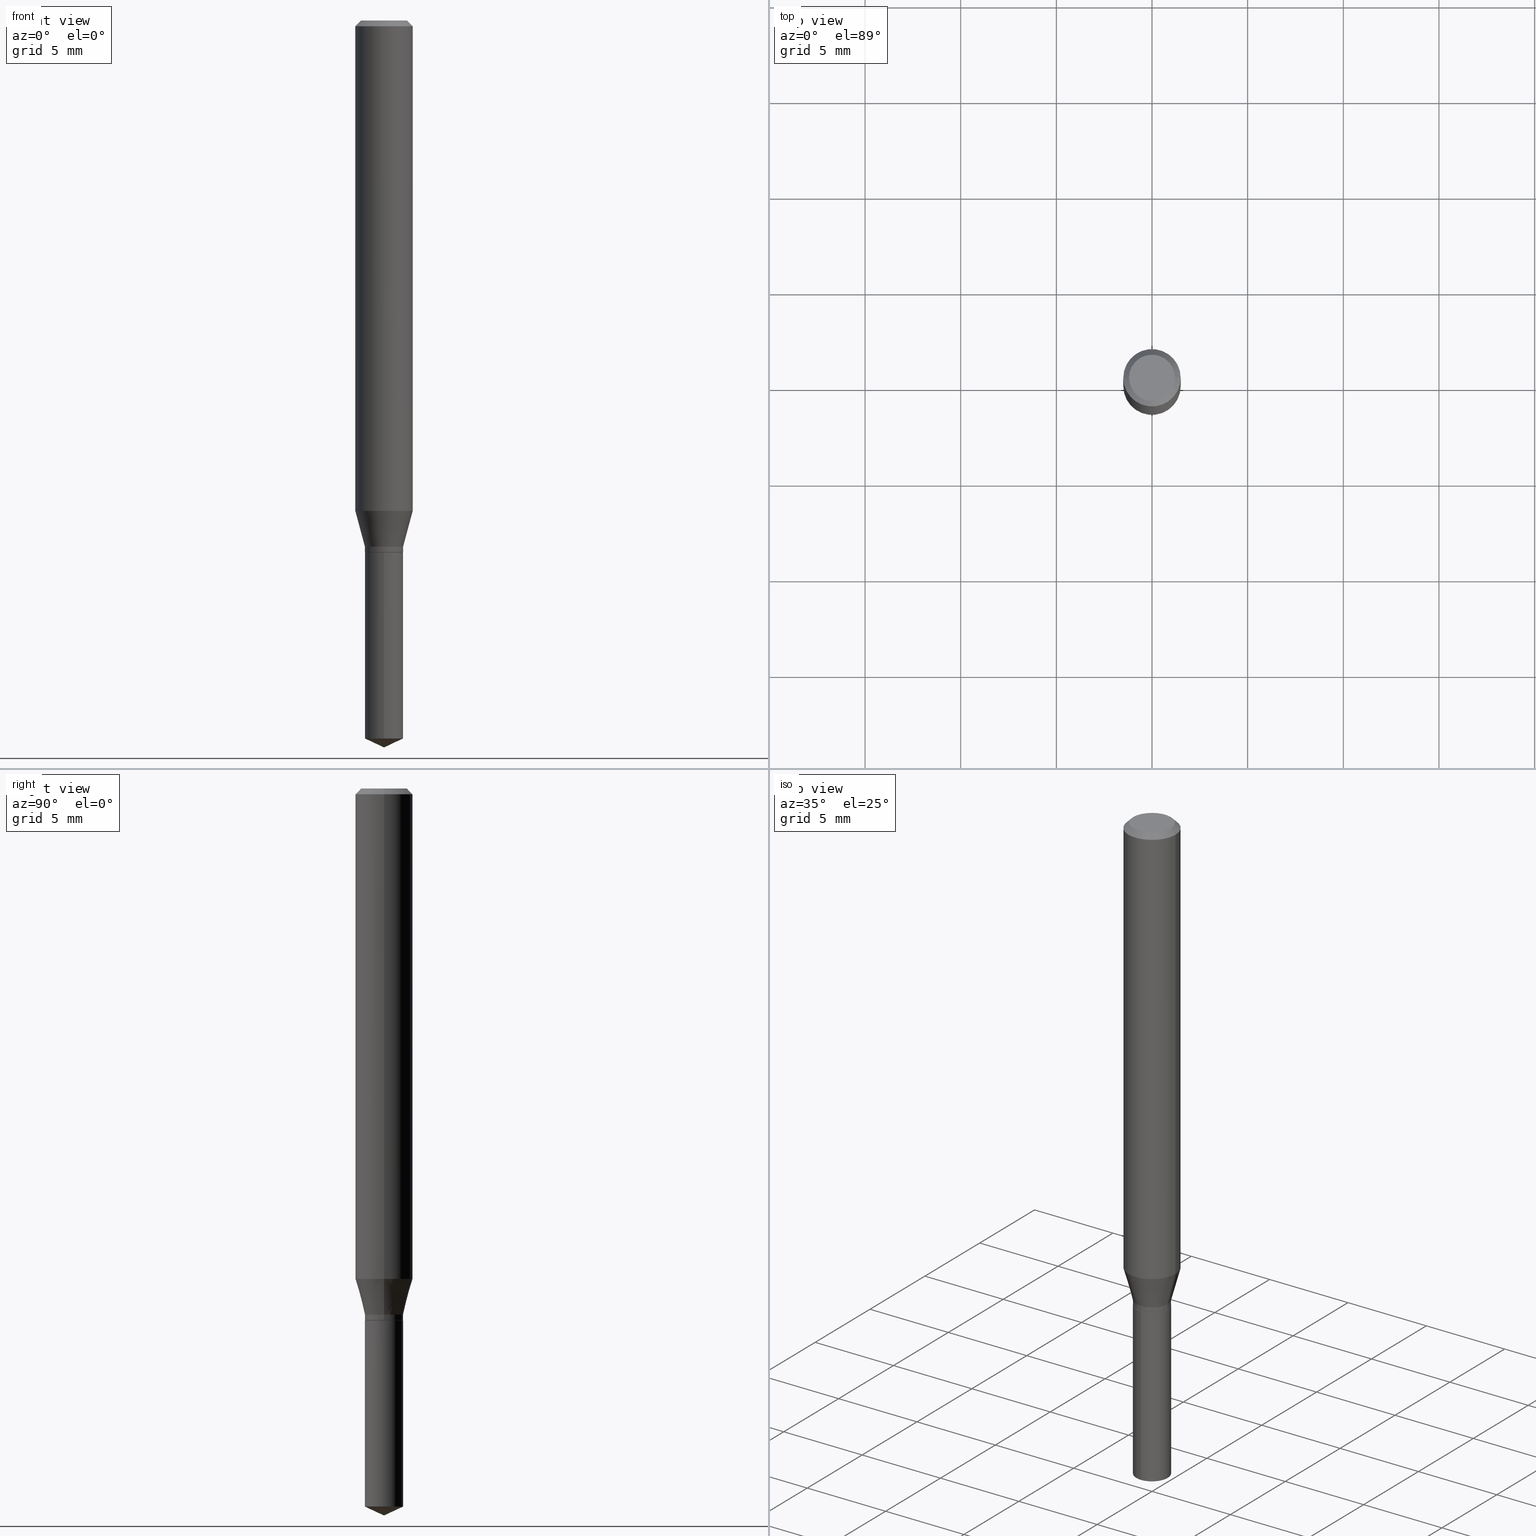
[diagram: canonical four-view strip — front | top / right | iso, engineering-drawing reading convention]
A machine part, canonical four-view strip (front | top / right | iso — engineering-drawing reading convention). The complete STEP part file that produces these views, byte-faithful:
ISO-10303-21;
HEADER;
FILE_DESCRIPTION (( 'STEP AP203' ),
    '1' );
FILE_NAME ('08369.STEP',
    '2024-04-24T14:39:38',
    ( '' ),
    ( '' ),
    'SwSTEP 2.0',
    'SolidWorks 2023',
    '' );
FILE_SCHEMA (( 'CONFIG_CONTROL_DESIGN' ));
ENDSEC;

DATA;
#1 = VERTEX_POINT ( 'NONE', #120 ) ;
#2 = ADVANCED_FACE ( 'NONE', ( #421 ), #215, .T. ) ;
#3 = PERSON_AND_ORGANIZATION ( #199, #125 ) ;
#4 = VERTEX_POINT ( 'NONE', #45 ) ;
#5 = CIRCLE ( 'NONE', #21, 0.03934999999999996834 ) ;
#6 = AXIS2_PLACEMENT_3D ( 'NONE', #400, #445, #213 ) ;
#7 = DIRECTION ( 'NONE',  ( 2.445468806185136597E-29, -3.491481338843145583E-15, -1.000000000000000000 ) ) ;
#8 = CC_DESIGN_APPROVAL ( #282, ( #61 ) ) ;
#9 = FACE_OUTER_BOUND ( 'NONE', #327, .T. ) ;
#10 = PLANE ( 'NONE',  #239 ) ;
#11 = DIMENSIONAL_EXPONENTS ( 1.000000000000000000, 0.000000000000000000, 0.000000000000000000, 0.000000000000000000, 0.000000000000000000, 0.000000000000000000, 0.000000000000000000 ) ;
#12 = CARTESIAN_POINT ( 'NONE',  ( 0.03934999999999996140, -2.747795813669542760E-16, 1.918775561275698621E-30 ) ) ;
#13 = EDGE_CURVE ( 'NONE', #4, #333, #265, .T. ) ;
#14 = CIRCLE ( 'NONE', #320, 0.03934999999999994752 ) ;
#15 = DIRECTION ( 'NONE',  ( -2.445468806185136597E-29, 3.491481338843145583E-15, 1.000000000000000000 ) ) ;
#16 = COORDINATED_UNIVERSAL_TIME_OFFSET ( 5, 0, .BEHIND. ) ;
#17 = CARTESIAN_POINT ( 'NONE',  ( -0.04724000000000000421, 3.504923541997677355E-16, -3.380025165670481712E-19 ) ) ;
#18 = DATE_AND_TIME ( #423, #426 ) ;
#19 = EDGE_CURVE ( 'NONE', #98, #245, #392, .T. ) ;
#20 = LINE ( 'NONE', #278, #154 ) ;
#21 = AXIS2_PLACEMENT_3D ( 'NONE', #427, #91, #128 ) ;
#22 = DIRECTION ( 'NONE',  ( -2.445468806185136597E-29, 3.491481338843145583E-15, 1.000000000000000000 ) ) ;
#23 = CARTESIAN_POINT ( 'NONE',  ( -0.05905000000000011628, -3.103952760819379740E-15, -1.009178599090892581 ) ) ;
#24 = ADVANCED_BREP_SHAPE_REPRESENTATION ( '08369', ( #412, #79, #31 ), #240 ) ;
#25 = ORIENTED_EDGE ( 'NONE', *, *, #289, .T. ) ;
#26 = PLANE ( 'NONE',  #196 ) ;
#27 = ORIENTED_EDGE ( 'NONE', *, *, #221, .F. ) ;
#28 = ADVANCED_FACE ( 'NONE', ( #9 ), #169, .T. ) ;
#29 = LINE ( 'NONE', #216, #479 ) ;
#30 = ORIENTED_EDGE ( 'NONE', *, *, #379, .T. ) ;
#31 = AXIS2_PLACEMENT_3D ( 'NONE', #188, #151, #419 ) ;
#32 = EDGE_CURVE ( 'NONE', #214, #98, #452, .T. ) ;
#33 = CARTESIAN_POINT ( 'NONE',  ( -2.747795813669278491E-16, -0.03935000000000382636, -1.094499999999999806 ) ) ;
#34 = ORIENTED_EDGE ( 'NONE', *, *, #251, .F. ) ;
#35 = CYLINDRICAL_SURFACE ( 'NONE', #140, 0.03934999999999996140 ) ;
#36 = ORIENTED_EDGE ( 'NONE', *, *, #187, .F. ) ;
#37 = PERSON_AND_ORGANIZATION_ROLE ( 'creator' ) ;
#38 = EDGE_LOOP ( 'NONE', ( #324, #176 ) ) ;
#39 = AXIS2_PLACEMENT_3D ( 'NONE', #241, #271, #429 ) ;
#40 = CIRCLE ( 'NONE', #70, 0.03934999999999994752 ) ;
#41 = ORIENTED_EDGE ( 'NONE', *, *, #19, .T. ) ;
#42 = VERTEX_POINT ( 'NONE', #270 ) ;
#43 = APPROVAL ( #112, 'UNSPECIFIED' ) ;
#44 = APPROVAL_DATE_TIME ( #220, #43 ) ;
#45 = CARTESIAN_POINT ( 'NONE',  ( 0.05905000000000011628, -3.935872192403094548E-15, -1.009178599090892581 ) ) ;
#46 = AXIS2_PLACEMENT_3D ( 'NONE', #237, #132, #436 ) ;
#47 = CIRCLE ( 'NONE', #186, 0.05905000000000011628 ) ;
#48 = APPROVAL_STATUS ( 'not_yet_approved' ) ;
#49 = DIRECTION ( 'NONE',  ( -6.982962677686266711E-15, -1.000000000000000000, 3.471217272762723151E-15 ) ) ;
#50 = DIRECTION ( 'NONE',  ( -6.982962677686266711E-15, -1.000000000000000000, 3.471217272762723151E-15 ) ) ;
#51 = EDGE_CURVE ( 'NONE', #333, #305, #424, .T. ) ;
#52 = PLANE ( 'NONE',  #86 ) ;
#53 = AXIS2_PLACEMENT_3D ( 'NONE', #410, #260, #461 ) ;
#54 = CARTESIAN_POINT ( 'NONE',  ( 2.676565608369631794E-29, -3.821426325363822773E-15, -1.094499999999999806 ) ) ;
#55 = ADVANCED_FACE ( 'NONE', ( #232 ), #339, .T. ) ;
#56 = CARTESIAN_POINT ( 'NONE',  ( 2.676565608369631794E-29, -3.821426325363822773E-15, -1.094499999999999806 ) ) ;
#57 = CC_DESIGN_PERSON_AND_ORGANIZATION_ASSIGNMENT ( #388, #276, ( #87 ) ) ;
#58 = CARTESIAN_POINT ( 'NONE',  ( 2.647709076456647173E-29, -3.780226845565473711E-15, -1.082699999999999996 ) ) ;
#59 = CONICAL_SURFACE ( 'NONE', #246, 0.03934999999999994752, 0.2617993877991501850 ) ;
#60 = LINE ( 'NONE', #173, #306 ) ;
#61 = SECURITY_CLASSIFICATION ( '', '', #93 ) ;
#62 = ORIENTED_EDGE ( 'NONE', *, *, #32, .T. ) ;
#63 = CARTESIAN_POINT ( 'NONE',  ( 2.795985665216355844E-16, 0.03934999999999617970, -1.094500000000000028 ) ) ;
#64 = ADVANCED_FACE ( 'NONE', ( #454 ), #456, .T. ) ;
#65 = EDGE_LOOP ( 'NONE', ( #157, #343, #365, #227 ) ) ;
#66 = CYLINDRICAL_SURFACE ( 'NONE', #6, 0.03934999999999996140 ) ;
#67 = ORIENTED_EDGE ( 'NONE', *, *, #135, .F. ) ;
#68 = CARTESIAN_POINT ( 'NONE',  ( 2.888098660104663766E-31, -4.123439461173779647E-17, -0.01181000000000007044 ) ) ;
#69 = ORIENTED_EDGE ( 'NONE', *, *, #88, .T. ) ;
#70 = AXIS2_PLACEMENT_3D ( 'NONE', #58, #259, #477 ) ;
#71 = ADVANCED_FACE ( 'NONE', ( #96 ), #238, .T. ) ;
#72 = DIRECTION ( 'NONE',  ( 1.000000000000000000, -6.982962677686265133E-15, 4.876176775795935232E-29 ) ) ;
#73 = ORIENTED_EDGE ( 'NONE', *, *, #299, .F. ) ;
#74 = COORDINATED_UNIVERSAL_TIME_OFFSET ( 5, 0, .BEHIND. ) ;
#75 = VERTEX_POINT ( 'NONE', #129 ) ;
#76 = ORIENTED_EDGE ( 'NONE', *, *, #88, .F. ) ;
#77 = VECTOR ( 'NONE', #319, 39.37007874015748143 ) ;
#78 = DIRECTION ( 'NONE',  ( 1.000000000000000000, -6.982962677686266711E-15, 4.876185090822587894E-29 ) ) ;
#79 = MANIFOLD_SOLID_BREP ( 'Body-Move/Copy2[2]', #383 ) ;
#80 = VERTEX_POINT ( 'NONE', #433 ) ;
#81 = PERSON_AND_ORGANIZATION_ROLE ( 'design_owner' ) ;
#82 = ORIENTED_EDGE ( 'NONE', *, *, #51, .T. ) ;
#83 = CC_DESIGN_PERSON_AND_ORGANIZATION_ASSIGNMENT ( #3, #81, ( #311 ) ) ;
#84 = APPROVAL_ROLE ( '' ) ;
#85 = DIRECTION ( 'NONE',  ( -2.445468806185136877E-29, 3.491481338843145188E-15, 1.000000000000000000 ) ) ;
#86 = AXIS2_PLACEMENT_3D ( 'NONE', #200, #202, #430 ) ;
#87 = PRODUCT_DEFINITION_FORMATION_WITH_SPECIFIED_SOURCE ( 'ANY', '', #311, .NOT_KNOWN. ) ;
#88 = EDGE_CURVE ( 'NONE', #42, #224, #257, .T. ) ;
#89 = DIRECTION ( 'NONE',  ( -2.445358326776455510E-29, 3.491639551644474585E-15, 1.000000000000000000 ) ) ;
#90 = CALENDAR_DATE ( 2024, 24, 4 ) ;
#91 = DIRECTION ( 'NONE',  ( -2.445468806185136597E-29, 3.491481338843145583E-15, 1.000000000000000000 ) ) ;
#92 = CARTESIAN_POINT ( 'NONE',  ( 8.265746106709734507E-48, -1.180129479067563789E-33, -3.380025165646692144E-19 ) ) ;
#93 = SECURITY_CLASSIFICATION_LEVEL ( 'unclassified' ) ;
#94 = CC_DESIGN_APPROVAL ( #43, ( #485 ) ) ;
#95 = DIRECTION ( 'NONE',  ( -2.445468806185136597E-29, 3.491481338843145583E-15, 1.000000000000000000 ) ) ;
#96 = FACE_OUTER_BOUND ( 'NONE', #398, .T. ) ;
#97 = DIRECTION ( 'NONE',  ( -2.445468806185136877E-29, 3.491481338843145188E-15, 1.000000000000000000 ) ) ;
#98 = VERTEX_POINT ( 'NONE', #168 ) ;
#99 = EDGE_CURVE ( 'NONE', #245, #98, #5, .T. ) ;
#100 = AXIS2_PLACEMENT_3D ( 'NONE', #395, #89, #389 ) ;
#101 = DIRECTION ( 'NONE',  ( -2.445358326776455510E-29, 3.491639551644474585E-15, 1.000000000000000000 ) ) ;
#102 = VERTEX_POINT ( 'NONE', #309 ) ;
#103 = FACE_OUTER_BOUND ( 'NONE', #252, .T. ) ;
#104 = ORIENTED_EDGE ( 'NONE', *, *, #107, .F. ) ;
#105 = CARTESIAN_POINT ( 'NONE',  ( 2.888098660104663766E-31, -4.123439461173779647E-17, -0.01181000000000007044 ) ) ;
#106 = VERTEX_POINT ( 'NONE', #391 ) ;
#107 = EDGE_CURVE ( 'NONE', #106, #411, #368, .T. ) ;
#108 = CARTESIAN_POINT ( 'NONE',  ( 2.647709076456647173E-29, -3.780226845565473711E-15, -1.082699999999999996 ) ) ;
#109 = AXIS2_PLACEMENT_3D ( 'NONE', #376, #185, #378 ) ;
#110 = ORIENTED_EDGE ( 'NONE', *, *, #379, .F. ) ;
#111 = CONICAL_SURFACE ( 'NONE', #471, 0.05904999999999999832, 0.7853981633974452814 ) ;
#112 = APPROVAL_STATUS ( 'not_yet_approved' ) ;
#113 = ORIENTED_EDGE ( 'NONE', *, *, #446, .F. ) ;
#114 =( LENGTH_UNIT ( ) NAMED_UNIT ( * ) SI_UNIT ( $, .METRE. ) );
#115 = UNCERTAINTY_MEASURE_WITH_UNIT (LENGTH_MEASURE( 1.000000000000000082E-05 ), #302, 'distance_accuracy_value', 'NONE');
#116 = ORIENTED_EDGE ( 'NONE', *, *, #344, .F. ) ;
#117 = CARTESIAN_POINT ( 'NONE',  ( 0.000000000000000000, 0.000000000000000000, 0.000000000000000000 ) ) ;
#118 = CLOSED_SHELL ( 'NONE', ( #342, #150, #481, #55, #192 ) ) ;
#119 = VECTOR ( 'NONE', #443, 39.37007874015748143 ) ;
#120 = CARTESIAN_POINT ( 'NONE',  ( 0.05904999999999999832, -4.535783407291118600E-16, -0.01181000000000007044 ) ) ;
#121 = APPLICATION_CONTEXT ( 'configuration controlled 3d designs of mechanical parts and assemblies' ) ;
#122 = CARTESIAN_POINT ( 'NONE',  ( 8.265746106709734507E-48, -1.180129479067563789E-33, -3.380025165646692144E-19 ) ) ;
#123 = DIRECTION ( 'NONE',  ( -2.445468806185136597E-29, 3.491481338843145583E-15, 1.000000000000000000 ) ) ;
#124 = CARTESIAN_POINT ( 'NONE',  ( -0.05904999999999999832, 3.711095515056362547E-16, -0.01181000000000007044 ) ) ;
#125 = ORGANIZATION ( 'UNSPECIFIED', 'UNSPECIFIED', '' ) ;
#126 = PERSON_AND_ORGANIZATION ( #199, #125 ) ;
#127 = CARTESIAN_POINT ( 'NONE',  ( 2.795985665216355844E-16, 0.03934999999999485437, -1.477750793651601446 ) ) ;
#128 = DIRECTION ( 'NONE',  ( 1.000000000000000000, -6.982962677686262766E-15, 0.000000000000000000 ) ) ;
#129 = CARTESIAN_POINT ( 'NONE',  ( 0.04724000000000000421, -3.852183633974369345E-16, -3.380025165621689721E-19 ) ) ;
#130 = VECTOR ( 'NONE', #159, 39.37007874015748143 ) ;
#131 = VECTOR ( 'NONE', #285, 39.37007874015748854 ) ;
#132 = DIRECTION ( 'NONE',  ( -2.445358326776455510E-29, 3.491639551644474585E-15, 1.000000000000000000 ) ) ;
#133 = DIRECTION ( 'NONE',  ( -2.445358326776455510E-29, 3.491639551644474585E-15, 1.000000000000000000 ) ) ;
#134 = ORIENTED_EDGE ( 'NONE', *, *, #310, .T. ) ;
#135 = EDGE_CURVE ( 'NONE', #80, #333, #20, .T. ) ;
#136 = LINE ( 'NONE', #359, #131 ) ;
#137 = EDGE_LOOP ( 'NONE', ( #110, #367, #76 ) ) ;
#138 = CIRCLE ( 'NONE', #418, 0.03885000000000000259 ) ;
#139 = DIRECTION ( 'NONE',  ( -2.445468806185136877E-29, 3.491481338843145188E-15, 1.000000000000000000 ) ) ;
#140 = AXIS2_PLACEMENT_3D ( 'NONE', #381, #300, #72 ) ;
#141 = ORIENTED_EDGE ( 'NONE', *, *, #460, .F. ) ;
#142 = LINE ( 'NONE', #448, #314 ) ;
#143 = DIRECTION ( 'NONE',  ( 0.7071067811864992780, -2.468850131081751401E-15, 0.7071067811865957564 ) ) ;
#144 = EDGE_LOOP ( 'NONE', ( #255, #413, #341, #183 ) ) ;
#145 = APPROVAL_ROLE ( '' ) ;
#146 = AXIS2_PLACEMENT_3D ( 'NONE', #92, #465, #165 ) ;
#147 = DIRECTION ( 'NONE',  ( 1.000000000000000000, -6.982962677686269077E-15, 0.000000000000000000 ) ) ;
#148 = APPROVAL_PERSON_ORGANIZATION ( #126, #407, #463 ) ;
#149 = CARTESIAN_POINT ( 'NONE',  ( -0.05905000000000006077, 4.195754854663395916E-16, -2.904631170795524694E-30 ) ) ;
#150 = ADVANCED_FACE ( 'NONE', ( #243 ), #203, .T. ) ;
#151 = DIRECTION ( 'NONE',  ( 0.000000000000000000, 0.000000000000000000, 1.000000000000000000 ) ) ;
#152 = DIRECTION ( 'NONE',  ( 1.000000000000000000, -6.982962677686266711E-15, 0.000000000000000000 ) ) ;
#153 = VERTEX_POINT ( 'NONE', #17 ) ;
#154 = VECTOR ( 'NONE', #396, 39.37007874015748143 ) ;
#155 = LOCAL_TIME ( 10, 39, 38.00000000000000000, #16 ) ;
#156 = DIRECTION ( 'NONE',  ( -1.000000000000000000, 6.982962677686266711E-15, 0.000000000000000000 ) ) ;
#157 = ORIENTED_EDGE ( 'NONE', *, *, #177, .F. ) ;
#158 = ADVANCED_FACE ( 'NONE', ( #163 ), #10, .F. ) ;
#159 = DIRECTION ( 'NONE',  ( 0.7071067811865453523, -7.319954787623248157E-15, -0.7071067811865496822 ) ) ;
#160 = CC_DESIGN_PERSON_AND_ORGANIZATION_ASSIGNMENT ( #205, #467, ( #61 ) ) ;
#161 = DIRECTION ( 'NONE',  ( -2.438088387897960049E-29, 3.491481338843145188E-15, 1.000000000000000000 ) ) ;
#162 = COORDINATED_UNIVERSAL_TIME_OFFSET ( 5, 0, .BEHIND. ) ;
#163 = FACE_OUTER_BOUND ( 'NONE', #420, .T. ) ;
#164 = DATE_AND_TIME ( #357, #155 ) ;
#165 = DIRECTION ( 'NONE',  ( 1.000000000000000000, -6.982962677686266711E-15, 4.876185090822587894E-29 ) ) ;
#166 = CALENDAR_DATE ( 2024, 24, 4 ) ;
#167 = EDGE_CURVE ( 'NONE', #245, #102, #206, .T. ) ;
#168 = CARTESIAN_POINT ( 'NONE',  ( -0.03934999999999996834, -3.520355148608338095E-15, -1.093999999999999861 ) ) ;
#169 = CONICAL_SURFACE ( 'NONE', #109, 0.05904999999999999832, 0.7853981633974452814 ) ;
#170 = CIRCLE ( 'NONE', #53, 0.03885000000000000259 ) ;
#171 = DIRECTION ( 'NONE',  ( 1.000000000000000000, -6.982962677686266711E-15, 0.000000000000000000 ) ) ;
#172 = EDGE_CURVE ( 'NONE', #449, #224, #318, .T. ) ;
#173 = CARTESIAN_POINT ( 'NONE',  ( 0.03885000000000000259, -4.092714425391933894E-15, -1.094499999999999806 ) ) ;
#174 = ORIENTED_EDGE ( 'NONE', *, *, #242, .T. ) ;
#175 = DIRECTION ( 'NONE',  ( -2.445468806185136597E-29, 3.491481338843145583E-15, 1.000000000000000000 ) ) ;
#176 = ORIENTED_EDGE ( 'NONE', *, *, #221, .T. ) ;
#177 = EDGE_CURVE ( 'NONE', #75, #1, #281, .T. ) ;
#178 = CARTESIAN_POINT ( 'NONE',  ( -0.05904999999999999832, -1.362805834982388396E-15, -0.01181000000000007044 ) ) ;
#179 = APPROVAL_PERSON_ORGANIZATION ( #334, #43, #145 ) ;
#180 = ORIENTED_EDGE ( 'NONE', *, *, #172, .F. ) ;
#181 = DIRECTION ( 'NONE',  ( -6.982962677686266711E-15, -1.000000000000000000, 3.471217272762723151E-15 ) ) ;
#182 = ORIENTED_EDGE ( 'NONE', *, *, #310, .F. ) ;
#183 = ORIENTED_EDGE ( 'NONE', *, *, #19, .F. ) ;
#184 = FACE_OUTER_BOUND ( 'NONE', #65, .T. ) ;
#185 = DIRECTION ( 'NONE',  ( 2.445468806185136597E-29, -3.491481338843145583E-15, -1.000000000000000000 ) ) ;
#186 = AXIS2_PLACEMENT_3D ( 'NONE', #482, #371, #439 ) ;
#187 = EDGE_CURVE ( 'NONE', #153, #305, #464, .T. ) ;
#188 = CARTESIAN_POINT ( 'NONE',  ( 0.000000000000000000, 0.000000000000000000, 0.000000000000000000 ) ) ;
#189 = ORIENTED_EDGE ( 'NONE', *, *, #256, .F. ) ;
#190 = APPLICATION_PROTOCOL_DEFINITION ( 'international standard', 'config_control_design', 1994, #414 ) ;
#191 = ORIENTED_EDGE ( 'NONE', *, *, #289, .F. ) ;
#192 = ADVANCED_FACE ( 'NONE', ( #387 ), #52, .F. ) ;
#193 = PERSON_AND_ORGANIZATION ( #199, #125 ) ;
#194 = ORIENTED_EDGE ( 'NONE', *, *, #431, .F. ) ;
#195 = AXIS2_PLACEMENT_3D ( 'NONE', #263, #123, #152 ) ;
#196 = AXIS2_PLACEMENT_3D ( 'NONE', #405, #475, #248 ) ;
#197 = PRODUCT_RELATED_PRODUCT_CATEGORY ( 'detail', '', ( #311 ) ) ;
#198 = CARTESIAN_POINT ( 'NONE',  ( 2.676565608369631794E-29, -3.821426325363822773E-15, -1.094499999999999806 ) ) ;
#199 = PERSON ( 'UNSPECIFIED', 'UNSPECIFIED', 'UNSPECIFIED', ('UNSPECIFIED'), ('UNSPECIFIED'), ('UNSPECIFIED') ) ;
#200 = CARTESIAN_POINT ( 'NONE',  ( 2.676565608369631794E-29, -3.821426325363822773E-15, -1.094499999999999806 ) ) ;
#201 = DATE_TIME_ROLE ( 'classification_date' ) ;
#202 = DIRECTION ( 'NONE',  ( 2.445358326776454949E-29, -3.491639551644474585E-15, -1.000000000000000000 ) ) ;
#203 = CONICAL_SURFACE ( 'NONE', #100, 84.42940631927631046, 1.134464013796324888 ) ;
#204 = DIRECTION ( 'NONE',  ( -2.445468806185136597E-29, 3.491481338843145583E-15, 1.000000000000000000 ) ) ;
#205 = PERSON_AND_ORGANIZATION ( #199, #125 ) ;
#206 = LINE ( 'NONE', #12, #77 ) ;
#207 = FACE_OUTER_BOUND ( 'NONE', #144, .T. ) ;
#208 = CONICAL_SURFACE ( 'NONE', #297, 0.03934999999999994752, 0.2617993877991501850 ) ;
#209 = DIRECTION ( 'NONE',  ( 1.000000000000000000, -6.982962677686266711E-15, 0.000000000000000000 ) ) ;
#210 = ORIENTED_EDGE ( 'NONE', *, *, #416, .T. ) ;
#211 = DIRECTION ( 'NONE',  ( 1.000000000000000000, -6.982962677686269077E-15, 0.000000000000000000 ) ) ;
#212 = ORIENTED_EDGE ( 'NONE', *, *, #99, .F. ) ;
#213 = DIRECTION ( 'NONE',  ( 1.000000000000000000, -6.982962677686265133E-15, 4.876176775795935232E-29 ) ) ;
#214 = VERTEX_POINT ( 'NONE', #349 ) ;
#215 = CONICAL_SURFACE ( 'NONE', #457, 0.03885000000000000259, 0.7853981633973801113 ) ;
#216 = CARTESIAN_POINT ( 'NONE',  ( 0.03934999999999994752, -4.055006426932427839E-15, -1.082699999999999996 ) ) ;
#217 = VECTOR ( 'NONE', #97, 39.37007874015748143 ) ;
#218 = ORIENTED_EDGE ( 'NONE', *, *, #13, .F. ) ;
#219 = ORIENTED_EDGE ( 'NONE', *, *, #277, .F. ) ;
#220 = DATE_AND_TIME ( #451, #234 ) ;
#221 = EDGE_CURVE ( 'NONE', #75, #153, #360, .T. ) ;
#222 = DIRECTION ( 'NONE',  ( 1.000000000000000000, -6.982962677686262766E-15, 0.000000000000000000 ) ) ;
#223 = AXIS2_PLACEMENT_3D ( 'NONE', #198, #348, #50 ) ;
#224 = VERTEX_POINT ( 'NONE', #127 ) ;
#225 = AXIS2_PLACEMENT_3D ( 'NONE', #290, #362, #211 ) ;
#226 = CARTESIAN_POINT ( 'NONE',  ( 3.613751127869260610E-29, -5.159599954676888561E-15, -1.477750793651601224 ) ) ;
#227 = ORIENTED_EDGE ( 'NONE', *, *, #394, .T. ) ;
#228 = ADVANCED_FACE ( 'NONE', ( #275 ), #59, .T. ) ;
#229 = APPLICATION_PROTOCOL_DEFINITION ( 'international standard', 'config_control_design', 1994, #121 ) ;
#230 = ORIENTED_EDGE ( 'NONE', *, *, #51, .F. ) ;
#231 = CC_DESIGN_DATE_AND_TIME_ASSIGNMENT ( #164, #428, ( #485 ) ) ;
#232 = FACE_OUTER_BOUND ( 'NONE', #295, .T. ) ;
#233 = VECTOR ( 'NONE', #385, 39.37007874015748143 ) ;
#234 = LOCAL_TIME ( 10, 39, 38.00000000000000000, #74 ) ;
#235 = DIRECTION ( 'NONE',  ( -0.7071067811865453523, 2.468850131082234184E-15, -0.7071067811865496822 ) ) ;
#236 = DATE_AND_TIME ( #90, #480 ) ;
#237 = CARTESIAN_POINT ( 'NONE',  ( 3.613751127869260610E-29, -5.159599954676888561E-15, -1.477750793651601224 ) ) ;
#238 = CYLINDRICAL_SURFACE ( 'NONE', #39, 0.05905000000000006077 ) ;
#239 = AXIS2_PLACEMENT_3D ( 'NONE', #56, #161, #358 ) ;
#240 =( GEOMETRIC_REPRESENTATION_CONTEXT ( 3 ) GLOBAL_UNCERTAINTY_ASSIGNED_CONTEXT ( ( #115 ) ) GLOBAL_UNIT_ASSIGNED_CONTEXT ( ( #302, #375, #267 ) ) REPRESENTATION_CONTEXT ( 'NONE', 'WORKASPACE' ) );
#241 = CARTESIAN_POINT ( 'NONE',  ( 0.000000000000000000, 0.000000000000000000, 0.000000000000000000 ) ) ;
#242 = EDGE_CURVE ( 'NONE', #447, #214, #138, .T. ) ;
#243 = FACE_OUTER_BOUND ( 'NONE', #137, .T. ) ;
#244 = DIRECTION ( 'NONE',  ( 1.000000000000000000, -6.982962677686266711E-15, 0.000000000000000000 ) ) ;
#245 = VERTEX_POINT ( 'NONE', #279 ) ;
#246 = AXIS2_PLACEMENT_3D ( 'NONE', #352, #15, #468 ) ;
#247 = AXIS2_PLACEMENT_3D ( 'NONE', #105, #175, #366 ) ;
#248 = DIRECTION ( 'NONE',  ( -1.000000000000000000, 6.982962677686265922E-15, -4.876176775795935793E-29 ) ) ;
#249 = ORIENTED_EDGE ( 'NONE', *, *, #394, .F. ) ;
#250 = DIRECTION ( 'NONE',  ( -2.445468806185136597E-29, 3.491481338843145583E-15, 1.000000000000000000 ) ) ;
#251 = EDGE_CURVE ( 'NONE', #98, #80, #437, .T. ) ;
#252 = EDGE_LOOP ( 'NONE', ( #69, #417, #104, #268 ) ) ;
#253 = FACE_OUTER_BOUND ( 'NONE', #462, .T. ) ;
#254 = DESIGN_CONTEXT ( 'detailed design', #121, 'design' ) ;
#255 = ORIENTED_EDGE ( 'NONE', *, *, #32, .F. ) ;
#256 = EDGE_CURVE ( 'NONE', #224, #411, #329, .T. ) ;
#257 = CIRCLE ( 'NONE', #46, 0.03935000000000000303 ) ;
#258 = AXIS2_PLACEMENT_3D ( 'NONE', #117, #95, #355 ) ;
#259 = DIRECTION ( 'NONE',  ( -2.445468806185136597E-29, 3.491481338843145583E-15, 1.000000000000000000 ) ) ;
#260 = DIRECTION ( 'NONE',  ( -2.445468806185136597E-29, 3.491481338843145583E-15, 1.000000000000000000 ) ) ;
#261 = CARTESIAN_POINT ( 'NONE',  ( 2.675342873966538993E-29, -3.819680584694400481E-15, -1.093999999999999861 ) ) ;
#262 = DIRECTION ( 'NONE',  ( 0.2588190451025214611, 1.565188264969620982E-15, 0.9659258262890679791 ) ) ;
#263 = CARTESIAN_POINT ( 'NONE',  ( 2.467914783946393779E-29, -3.523528246285719627E-15, -1.009178599090892581 ) ) ;
#264 = LENGTH_MEASURE_WITH_UNIT ( LENGTH_MEASURE( 0.02539999999999999897 ), #114 );
#265 = CIRCLE ( 'NONE', #195, 0.05905000000000011628 ) ;
#266 = ORIENTED_EDGE ( 'NONE', *, *, #277, .T. ) ;
#267 =( NAMED_UNIT ( * ) SI_UNIT ( $, .STERADIAN. ) SOLID_ANGLE_UNIT ( ) );
#268 = ORIENTED_EDGE ( 'NONE', *, *, #422, .F. ) ;
#269 = CC_DESIGN_PERSON_AND_ORGANIZATION_ASSIGNMENT ( #432, #315, ( #87 ) ) ;
#270 = CARTESIAN_POINT ( 'NONE',  ( -2.747795813669185307E-16, -0.03935000000000517251, -1.477750793651601002 ) ) ;
#271 = DIRECTION ( 'NONE',  ( -2.445468806185136597E-29, 3.491481338843145583E-15, 1.000000000000000000 ) ) ;
#272 = VECTOR ( 'NONE', #316, 39.37007874015748143 ) ;
#273 = CC_DESIGN_APPROVAL ( #407, ( #87 ) ) ;
#274 = PERSON_AND_ORGANIZATION ( #199, #125 ) ;
#275 = FACE_OUTER_BOUND ( 'NONE', #291, .T. ) ;
#276 = PERSON_AND_ORGANIZATION_ROLE ( 'design_supplier' ) ;
#277 = EDGE_CURVE ( 'NONE', #80, #102, #40, .T. ) ;
#278 = CARTESIAN_POINT ( 'NONE',  ( -0.03934999999999994752, -3.500628279043874316E-15, -1.082699999999999996 ) ) ;
#279 = CARTESIAN_POINT ( 'NONE',  ( 0.03934999999999996834, -4.094460166061354609E-15, -1.093999999999999861 ) ) ;
#280 = AXIS2_PLACEMENT_3D ( 'NONE', #490, #301, #49 ) ;
#281 = LINE ( 'NONE', #313, #130 ) ;
#282 = APPROVAL ( #48, 'UNSPECIFIED' ) ;
#283 = CARTESIAN_POINT ( 'NONE',  ( 2.676565608369631794E-29, -3.821426325363822773E-15, -1.094499999999999806 ) ) ;
#284 = EDGE_LOOP ( 'NONE', ( #174, #62, #212, #116 ) ) ;
#285 = DIRECTION ( 'NONE',  ( -6.328713451373399355E-15, -0.9063077870366528233, 0.4226182617406928910 ) ) ;
#286 = ORIENTED_EDGE ( 'NONE', *, *, #99, .T. ) ;
#287 = AXIS2_PLACEMENT_3D ( 'NONE', #261, #346, #222 ) ;
#288 = CIRCLE ( 'NONE', #247, 0.05904999999999999832 ) ;
#289 = EDGE_CURVE ( 'NONE', #411, #106, #361, .T. ) ;
#290 = CARTESIAN_POINT ( 'NONE',  ( 2.676565608369631794E-29, -3.821426325363822773E-15, -1.094499999999999806 ) ) ;
#291 = EDGE_LOOP ( 'NONE', ( #67, #266, #440, #303 ) ) ;
#292 = FACE_OUTER_BOUND ( 'NONE', #483, .T. ) ;
#293 = ORIENTED_EDGE ( 'NONE', *, *, #135, .T. ) ;
#294 = CARTESIAN_POINT ( 'NONE',  ( 2.795985665216261180E-16, 0.03934999999999617970, -1.094500000000000028 ) ) ;
#295 = EDGE_LOOP ( 'NONE', ( #189, #459, #474, #191 ) ) ;
#296 = VECTOR ( 'NONE', #235, 39.37007874015748143 ) ;
#297 = AXIS2_PLACEMENT_3D ( 'NONE', #108, #484, #209 ) ;
#298 = EDGE_LOOP ( 'NONE', ( #486, #25 ) ) ;
#299 = EDGE_CURVE ( 'NONE', #102, #80, #14, .T. ) ;
#300 = DIRECTION ( 'NONE',  ( -2.445468806185136597E-29, 3.491481338843145583E-15, 1.000000000000000000 ) ) ;
#301 = DIRECTION ( 'NONE',  ( -2.445358326776455510E-29, 3.491639551644474585E-15, 1.000000000000000000 ) ) ;
#302 =( CONVERSION_BASED_UNIT ( 'INCH', #264 ) LENGTH_UNIT ( ) NAMED_UNIT ( #11 ) );
#303 = ORIENTED_EDGE ( 'NONE', *, *, #335, .F. ) ;
#304 = FACE_OUTER_BOUND ( 'NONE', #372, .T. ) ;
#305 = VERTEX_POINT ( 'NONE', #178 ) ;
#306 = VECTOR ( 'NONE', #143, 39.37007874015748143 ) ;
#307 = DIRECTION ( 'NONE',  ( -2.445358326776455510E-29, 3.491639551644474585E-15, 1.000000000000000000 ) ) ;
#308 = CARTESIAN_POINT ( 'NONE',  ( -0.03885000000000000259, -3.545380472521023882E-15, -1.094499999999999806 ) ) ;
#309 = CARTESIAN_POINT ( 'NONE',  ( 0.03934999999999994752, -4.055006426932427839E-15, -1.082699999999999996 ) ) ;
#310 = EDGE_CURVE ( 'NONE', #4, #1, #142, .T. ) ;
#311 = PRODUCT ( '08369', '08369', '', ( #374 ) ) ;
#312 = DATE_AND_TIME ( #166, #337 ) ;
#313 = CARTESIAN_POINT ( 'NONE',  ( 0.05904999999999999832, -4.463468013801466955E-16, -0.01181000000000007044 ) ) ;
#314 = VECTOR ( 'NONE', #139, 39.37007874015748143 ) ;
#315 = PERSON_AND_ORGANIZATION_ROLE ( 'creator' ) ;
#316 = DIRECTION ( 'NONE',  ( 6.439704144417057174E-15, 0.9063077870366559319, 0.4226182617406866737 ) ) ;
#317 = APPROVAL_STATUS ( 'not_yet_approved' ) ;
#318 = LINE ( 'NONE', #470, #272 ) ;
#319 = DIRECTION ( 'NONE',  ( -2.445468806185136877E-29, 3.491481338843145188E-15, 1.000000000000000000 ) ) ;
#320 = AXIS2_PLACEMENT_3D ( 'NONE', #402, #250, #244 ) ;
#321 = AXIS2_PLACEMENT_3D ( 'NONE', #473, #101, #364 ) ;
#322 = DIRECTION ( 'NONE',  ( -2.445358326776455790E-29, 3.491639551644474585E-15, 1.000000000000000000 ) ) ;
#323 = CARTESIAN_POINT ( 'NONE',  ( -0.03934999999999996140, 2.795985665215991489E-16, -1.935600958015303540E-30 ) ) ;
#324 = ORIENTED_EDGE ( 'NONE', *, *, #434, .T. ) ;
#325 = ADVANCED_FACE ( 'NONE', ( #253 ), #208, .T. ) ;
#326 = LINE ( 'NONE', #33, #119 ) ;
#327 = EDGE_LOOP ( 'NONE', ( #27, #476, #210, #36 ) ) ;
#328 = AXIS2_PLACEMENT_3D ( 'NONE', #122, #340, #78 ) ;
#329 = LINE ( 'NONE', #294, #377 ) ;
#330 = ORIENTED_EDGE ( 'NONE', *, *, #416, .F. ) ;
#331 = FACE_OUTER_BOUND ( 'NONE', #38, .T. ) ;
#332 = ADVANCED_FACE ( 'NONE', ( #207 ), #442, .T. ) ;
#333 = VERTEX_POINT ( 'NONE', #23 ) ;
#334 = PERSON_AND_ORGANIZATION ( #199, #125 ) ;
#335 = EDGE_CURVE ( 'NONE', #333, #4, #47, .T. ) ;
#336 = EDGE_LOOP ( 'NONE', ( #34, #41, #363, #219 ) ) ;
#337 = LOCAL_TIME ( 10, 39, 38.00000000000000000, #354 ) ;
#338 = DIRECTION ( 'NONE',  ( -2.445358326776455510E-29, 3.491639551644474585E-15, 1.000000000000000000 ) ) ;
#339 = CYLINDRICAL_SURFACE ( 'NONE', #280, 0.03935000000000000303 ) ;
#340 = DIRECTION ( 'NONE',  ( -2.445468806185136597E-29, 3.491481338843145583E-15, 1.000000000000000000 ) ) ;
#341 = ORIENTED_EDGE ( 'NONE', *, *, #344, .T. ) ;
#342 = ADVANCED_FACE ( 'NONE', ( #103 ), #397, .T. ) ;
#343 = ORIENTED_EDGE ( 'NONE', *, *, #434, .F. ) ;
#344 = EDGE_CURVE ( 'NONE', #447, #245, #60, .T. ) ;
#345 = DIRECTION ( 'NONE',  ( -6.982962677686266711E-15, -1.000000000000000000, 6.942434545525446301E-15 ) ) ;
#346 = DIRECTION ( 'NONE',  ( -2.445468806185136597E-29, 3.491481338843145583E-15, 1.000000000000000000 ) ) ;
#347 = AXIS2_PLACEMENT_3D ( 'NONE', #283, #133, #181 ) ;
#348 = DIRECTION ( 'NONE',  ( -2.445358326776455510E-29, 3.491639551644474585E-15, 1.000000000000000000 ) ) ;
#349 = CARTESIAN_POINT ( 'NONE',  ( -0.03885000000000000259, -3.542731245346912681E-15, -1.094499999999999806 ) ) ;
#350 = PRODUCT_DEFINITION_SHAPE ( 'NONE', 'NONE',  #485 ) ;
#351 = APPROVAL_DATE_TIME ( #236, #282 ) ;
#352 = CARTESIAN_POINT ( 'NONE',  ( 2.647709076456647173E-29, -3.780226845565473711E-15, -1.082699999999999996 ) ) ;
#353 = CIRCLE ( 'NONE', #408, 0.03935000000000000303 ) ;
#354 = COORDINATED_UNIVERSAL_TIME_OFFSET ( 5, 0, .BEHIND. ) ;
#355 = DIRECTION ( 'NONE',  ( 1.000000000000000000, -6.982962677686266711E-15, 4.876176775795935793E-29 ) ) ;
#356 = CC_DESIGN_PERSON_AND_ORGANIZATION_ASSIGNMENT ( #193, #37, ( #485 ) ) ;
#357 = CALENDAR_DATE ( 2024, 24, 4 ) ;
#358 = DIRECTION ( 'NONE',  ( 1.000000000000000000, -6.982962677686265922E-15, 4.876176775795935793E-29 ) ) ;
#359 = CARTESIAN_POINT ( 'NONE',  ( 3.658500592690254185E-29, -5.223841933215297403E-15, -1.496099999999999985 ) ) ;
#360 = CIRCLE ( 'NONE', #146, 0.04724000000000000421 ) ;
#361 = CIRCLE ( 'NONE', #347, 0.03935000000000000303 ) ;
#362 = DIRECTION ( 'NONE',  ( -2.445468806185136597E-29, 3.491481338843145583E-15, 1.000000000000000000 ) ) ;
#363 = ORIENTED_EDGE ( 'NONE', *, *, #167, .T. ) ;
#364 = DIRECTION ( 'NONE',  ( -6.982962677686266711E-15, -1.000000000000000000, 3.471217272762723151E-15 ) ) ;
#365 = ORIENTED_EDGE ( 'NONE', *, *, #187, .T. ) ;
#366 = DIRECTION ( 'NONE',  ( 1.000000000000000000, -6.982962677686266711E-15, 0.000000000000000000 ) ) ;
#367 = ORIENTED_EDGE ( 'NONE', *, *, #172, .T. ) ;
#368 = CIRCLE ( 'NONE', #223, 0.03935000000000000303 ) ;
#369 = AXIS2_PLACEMENT_3D ( 'NONE', #68, #22, #171 ) ;
#370 = ADVANCED_FACE ( 'NONE', ( #331 ), #26, .F. ) ;
#371 = DIRECTION ( 'NONE',  ( -2.445468806185136597E-29, 3.491481338843145583E-15, 1.000000000000000000 ) ) ;
#372 = EDGE_LOOP ( 'NONE', ( #180, #30, #113 ) ) ;
#373 = CC_DESIGN_DATE_AND_TIME_ASSIGNMENT ( #312, #201, ( #61 ) ) ;
#374 = MECHANICAL_CONTEXT ( 'NONE', #414, 'mechanical' ) ;
#375 =( NAMED_UNIT ( * ) PLANE_ANGLE_UNIT ( ) SI_UNIT ( $, .RADIAN. ) );
#376 = CARTESIAN_POINT ( 'NONE',  ( 2.888098660104663766E-31, -4.123439461173779647E-17, -0.01181000000000007044 ) ) ;
#377 = VECTOR ( 'NONE', #322, 39.37007874015748143 ) ;
#378 = DIRECTION ( 'NONE',  ( -1.000000000000000000, 6.982962677686266711E-15, 0.000000000000000000 ) ) ;
#379 = EDGE_CURVE ( 'NONE', #449, #42, #136, .T. ) ;
#380 = ORIENTED_EDGE ( 'NONE', *, *, #242, .F. ) ;
#381 = CARTESIAN_POINT ( 'NONE',  ( 0.000000000000000000, 0.000000000000000000, 0.000000000000000000 ) ) ;
#382 = CARTESIAN_POINT ( 'NONE',  ( 2.676565608369631794E-29, -3.821426325363822773E-15, -1.094499999999999806 ) ) ;
#383 = CLOSED_SHELL ( 'NONE', ( #2, #28, #64, #325, #404, #466, #228, #71, #472, #370, #158, #332 ) ) ;
#384 = CIRCLE ( 'NONE', #328, 0.04724000000000000421 ) ;
#385 = DIRECTION ( 'NONE',  ( -0.7071067811864992780, 7.493145998870180611E-15, 0.7071067811865957564 ) ) ;
#386 = COORDINATED_UNIVERSAL_TIME_OFFSET ( 5, 0, .BEHIND. ) ;
#387 = FACE_OUTER_BOUND ( 'NONE', #298, .T. ) ;
#388 = PERSON_AND_ORGANIZATION ( #199, #125 ) ;
#389 = DIRECTION ( 'NONE',  ( -6.982962677686265922E-15, -1.000000000000000000, 3.520397390770371828E-15 ) ) ;
#390 = APPROVAL_DATE_TIME ( #18, #407 ) ;
#391 = CARTESIAN_POINT ( 'NONE',  ( -2.747795813669278491E-16, -0.03935000000000382636, -1.094499999999999806 ) ) ;
#392 = CIRCLE ( 'NONE', #287, 0.03934999999999996834 ) ;
#393 = CONICAL_SURFACE ( 'NONE', #450, 84.42940631927631046, 1.134464013796324888 ) ;
#394 = EDGE_CURVE ( 'NONE', #305, #1, #435, .T. ) ;
#395 = CARTESIAN_POINT ( 'NONE',  ( -9.261532836068574158E-28, 1.322424553111868898E-13, 37.87397874015748300 ) ) ;
#396 = DIRECTION ( 'NONE',  ( -0.2588190451025214611, 5.211531920934550253E-15, 0.9659258262890679791 ) ) ;
#397 = CYLINDRICAL_SURFACE ( 'NONE', #321, 0.03935000000000000303 ) ;
#398 = EDGE_LOOP ( 'NONE', ( #230, #406, #134, #249 ) ) ;
#399 = APPROVAL_PERSON_ORGANIZATION ( #274, #282, #84 ) ;
#400 = CARTESIAN_POINT ( 'NONE',  ( 0.000000000000000000, 0.000000000000000000, 0.000000000000000000 ) ) ;
#401 = ORIENTED_EDGE ( 'NONE', *, *, #167, .F. ) ;
#402 = CARTESIAN_POINT ( 'NONE',  ( 2.647709076456647173E-29, -3.780226845565473711E-15, -1.082699999999999996 ) ) ;
#403 = ORIENTED_EDGE ( 'NONE', *, *, #251, .T. ) ;
#404 = ADVANCED_FACE ( 'NONE', ( #292 ), #66, .T. ) ;
#405 = CARTESIAN_POINT ( 'NONE',  ( 4.132873053354867254E-48, -5.900647395337818946E-34, -1.690012582823346072E-19 ) ) ;
#406 = ORIENTED_EDGE ( 'NONE', *, *, #335, .T. ) ;
#407 = APPROVAL ( #317, 'UNSPECIFIED' ) ;
#408 = AXIS2_PLACEMENT_3D ( 'NONE', #226, #338, #345 ) ;
#409 = CC_DESIGN_SECURITY_CLASSIFICATION ( #61, ( #87 ) ) ;
#410 = CARTESIAN_POINT ( 'NONE',  ( 2.676565608369631794E-29, -3.821426325363822773E-15, -1.094499999999999806 ) ) ;
#411 = VERTEX_POINT ( 'NONE', #63 ) ;
#412 = MANIFOLD_SOLID_BREP ( 'Body-Move/Copy2[1]', #118 ) ;
#413 = ORIENTED_EDGE ( 'NONE', *, *, #460, .T. ) ;
#414 = APPLICATION_CONTEXT ( 'configuration controlled 3d designs of mechanical parts and assemblies' ) ;
#415 = CARTESIAN_POINT ( 'NONE',  ( 3.658500592690254185E-29, -5.223841933215297403E-15, -1.496099999999999985 ) ) ;
#416 = EDGE_CURVE ( 'NONE', #1, #305, #288, .T. ) ;
#417 = ORIENTED_EDGE ( 'NONE', *, *, #256, .T. ) ;
#418 = AXIS2_PLACEMENT_3D ( 'NONE', #54, #204, #469 ) ;
#419 = DIRECTION ( 'NONE',  ( 1.000000000000000000, 0.000000000000000000, 0.000000000000000000 ) ) ;
#420 = EDGE_LOOP ( 'NONE', ( #380, #141 ) ) ;
#421 = FACE_OUTER_BOUND ( 'NONE', #284, .T. ) ;
#422 = EDGE_CURVE ( 'NONE', #42, #106, #326, .T. ) ;
#423 = CALENDAR_DATE ( 2024, 24, 4 ) ;
#424 = LINE ( 'NONE', #149, #441 ) ;
#425 = SHAPE_DEFINITION_REPRESENTATION ( #350, #24 ) ;
#426 = LOCAL_TIME ( 10, 39, 38.00000000000000000, #162 ) ;
#427 = CARTESIAN_POINT ( 'NONE',  ( 2.675342873966538993E-29, -3.819680584694400481E-15, -1.093999999999999861 ) ) ;
#428 = DATE_TIME_ROLE ( 'creation_date' ) ;
#429 = DIRECTION ( 'NONE',  ( 1.000000000000000000, -6.982962677686266711E-15, 4.876176775795935793E-29 ) ) ;
#430 = DIRECTION ( 'NONE',  ( 6.982962677686265922E-15, 1.000000000000000000, -3.491639551644474585E-15 ) ) ;
#431 = EDGE_CURVE ( 'NONE', #102, #4, #29, .T. ) ;
#432 = PERSON_AND_ORGANIZATION ( #199, #125 ) ;
#433 = CARTESIAN_POINT ( 'NONE',  ( -0.03934999999999994752, -3.520355148608338095E-15, -1.082699999999999996 ) ) ;
#434 = EDGE_CURVE ( 'NONE', #153, #75, #384, .T. ) ;
#435 = CIRCLE ( 'NONE', #369, 0.05904999999999999832 ) ;
#436 = DIRECTION ( 'NONE',  ( -6.982962677686266711E-15, -1.000000000000000000, 6.942434545525446301E-15 ) ) ;
#437 = LINE ( 'NONE', #323, #217 ) ;
#438 = EDGE_LOOP ( 'NONE', ( #444, #82, #330, #182 ) ) ;
#439 = DIRECTION ( 'NONE',  ( 1.000000000000000000, -6.982962677686266711E-15, 0.000000000000000000 ) ) ;
#440 = ORIENTED_EDGE ( 'NONE', *, *, #431, .T. ) ;
#441 = VECTOR ( 'NONE', #85, 39.37007874015748143 ) ;
#442 = CONICAL_SURFACE ( 'NONE', #225, 0.03885000000000000259, 0.7853981633973801113 ) ;
#443 = DIRECTION ( 'NONE',  ( -2.445358326776455790E-29, 3.491639551644474585E-15, 1.000000000000000000 ) ) ;
#444 = ORIENTED_EDGE ( 'NONE', *, *, #13, .T. ) ;
#445 = DIRECTION ( 'NONE',  ( -2.445468806185136597E-29, 3.491481338843145583E-15, 1.000000000000000000 ) ) ;
#446 = EDGE_CURVE ( 'NONE', #224, #42, #353, .T. ) ;
#447 = VERTEX_POINT ( 'NONE', #487 ) ;
#448 = CARTESIAN_POINT ( 'NONE',  ( 0.05905000000000006077, -4.123439461173744764E-16, 2.879382386107503023E-30 ) ) ;
#449 = VERTEX_POINT ( 'NONE', #415 ) ;
#450 = AXIS2_PLACEMENT_3D ( 'NONE', #489, #307, #458 ) ;
#451 = CALENDAR_DATE ( 2024, 24, 4 ) ;
#452 = LINE ( 'NONE', #308, #233 ) ;
#453 = CARTESIAN_POINT ( 'NONE',  ( 2.888098660104663766E-31, -4.123439461173779647E-17, -0.01181000000000007044 ) ) ;
#454 = FACE_OUTER_BOUND ( 'NONE', #438, .T. ) ;
#455 = FACE_OUTER_BOUND ( 'NONE', #336, .T. ) ;
#456 = CYLINDRICAL_SURFACE ( 'NONE', #258, 0.05905000000000006077 ) ;
#457 = AXIS2_PLACEMENT_3D ( 'NONE', #382, #488, #147 ) ;
#458 = DIRECTION ( 'NONE',  ( -6.982962677686265922E-15, -1.000000000000000000, 3.520397390770371828E-15 ) ) ;
#459 = ORIENTED_EDGE ( 'NONE', *, *, #446, .T. ) ;
#460 = EDGE_CURVE ( 'NONE', #214, #447, #170, .T. ) ;
#461 = DIRECTION ( 'NONE',  ( 1.000000000000000000, -6.982962677686269077E-15, 0.000000000000000000 ) ) ;
#462 = EDGE_LOOP ( 'NONE', ( #478, #293, #218, #194 ) ) ;
#463 = APPROVAL_ROLE ( '' ) ;
#464 = LINE ( 'NONE', #124, #296 ) ;
#465 = DIRECTION ( 'NONE',  ( -2.445468806185136597E-29, 3.491481338843145583E-15, 1.000000000000000000 ) ) ;
#466 = ADVANCED_FACE ( 'NONE', ( #455 ), #35, .T. ) ;
#467 = PERSON_AND_ORGANIZATION_ROLE ( 'classification_officer' ) ;
#468 = DIRECTION ( 'NONE',  ( 1.000000000000000000, -6.982962677686266711E-15, 0.000000000000000000 ) ) ;
#469 = DIRECTION ( 'NONE',  ( 1.000000000000000000, -6.982962677686269077E-15, 0.000000000000000000 ) ) ;
#470 = CARTESIAN_POINT ( 'NONE',  ( 3.658744552762151624E-29, -5.223495605393188568E-15, -1.496099999999999985 ) ) ;
#471 = AXIS2_PLACEMENT_3D ( 'NONE', #453, #7, #156 ) ;
#472 = ADVANCED_FACE ( 'NONE', ( #184 ), #111, .T. ) ;
#473 = CARTESIAN_POINT ( 'NONE',  ( 2.676565608369631794E-29, -3.821426325363822773E-15, -1.094499999999999806 ) ) ;
#474 = ORIENTED_EDGE ( 'NONE', *, *, #422, .T. ) ;
#475 = DIRECTION ( 'NONE',  ( 2.438088387897960049E-29, -3.491481338843145188E-15, -1.000000000000000000 ) ) ;
#476 = ORIENTED_EDGE ( 'NONE', *, *, #177, .T. ) ;
#477 = DIRECTION ( 'NONE',  ( 1.000000000000000000, -6.982962677686266711E-15, 0.000000000000000000 ) ) ;
#478 = ORIENTED_EDGE ( 'NONE', *, *, #299, .T. ) ;
#479 = VECTOR ( 'NONE', #262, 39.37007874015748143 ) ;
#480 = LOCAL_TIME ( 10, 39, 38.00000000000000000, #386 ) ;
#481 = ADVANCED_FACE ( 'NONE', ( #304 ), #393, .T. ) ;
#482 = CARTESIAN_POINT ( 'NONE',  ( 2.467914783946393779E-29, -3.523528246285719627E-15, -1.009178599090892581 ) ) ;
#483 = EDGE_LOOP ( 'NONE', ( #286, #403, #73, #401 ) ) ;
#484 = DIRECTION ( 'NONE',  ( -2.445468806185136597E-29, 3.491481338843145583E-15, 1.000000000000000000 ) ) ;
#485 = PRODUCT_DEFINITION ( 'UNKNOWN', '', #87, #254 ) ;
#486 = ORIENTED_EDGE ( 'NONE', *, *, #107, .T. ) ;
#487 = CARTESIAN_POINT ( 'NONE',  ( 0.03885000000000000259, -4.092714425391933894E-15, -1.094499999999999806 ) ) ;
#488 = DIRECTION ( 'NONE',  ( -2.445468806185136597E-29, 3.491481338843145583E-15, 1.000000000000000000 ) ) ;
#489 = CARTESIAN_POINT ( 'NONE',  ( -9.261532836068574158E-28, 1.322424553111868898E-13, 37.87397874015748300 ) ) ;
#490 = CARTESIAN_POINT ( 'NONE',  ( 2.676565608369631794E-29, -3.821426325363822773E-15, -1.094499999999999806 ) ) ;
ENDSEC;
END-ISO-10303-21;
